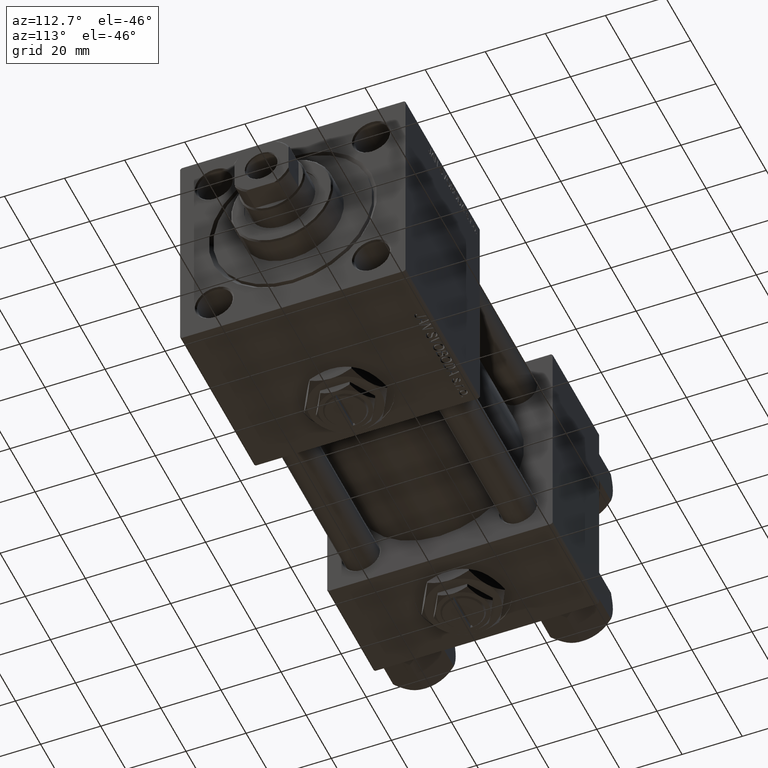
[diagram: clean part render]
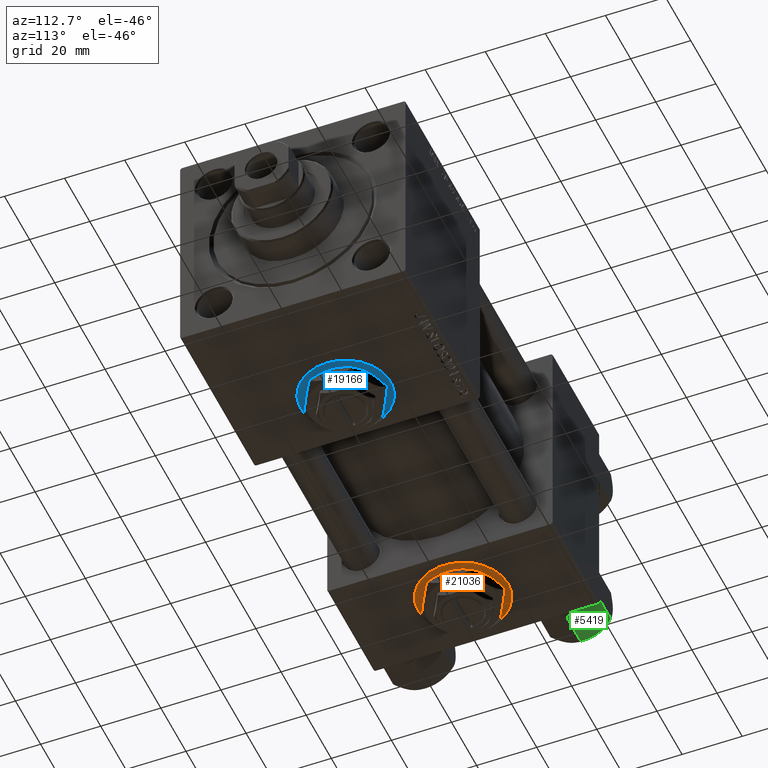
[diagram: same view with three faces highlighted in distinct colors, each labeled with its STEP entity id]
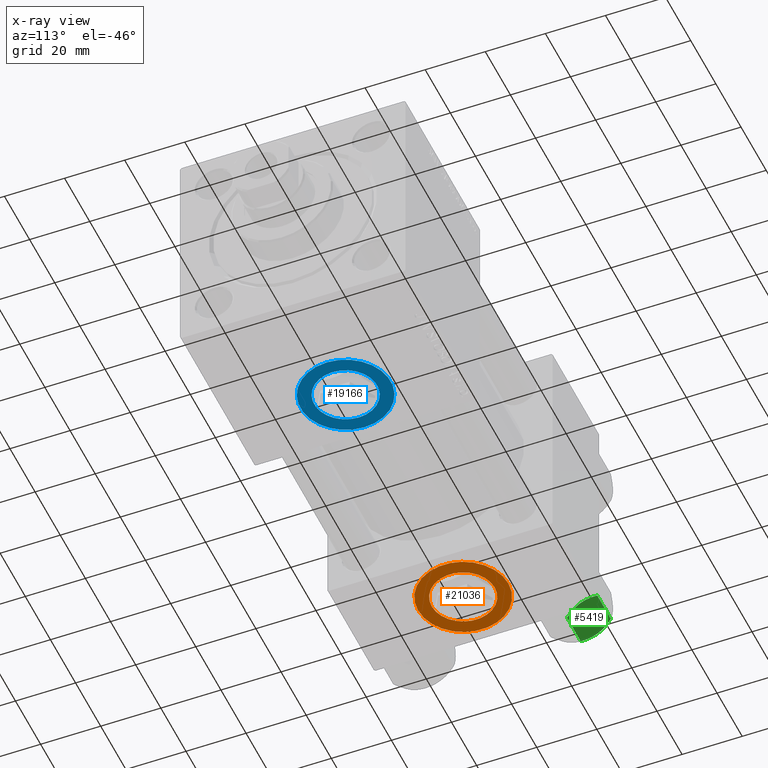
[diagram: x-ray of the same camera — body ghosted, the three highlighted faces saturated]
A machine part, auxiliary view with three faces highlighted in distinct colors.
The next image is the same camera in x-ray (body ghosted, the three faces saturated) — at least one of them is partly hidden behind the body in this view.
Their STEP definitions:

[orange] entity #21036 — the highlighted planar face has unit normal (0, -0, -1).
#77 = EDGE_CURVE ( 'NONE', #47292, #47992, #15383, .T. ) ;
#2764 = AXIS2_PLACEMENT_3D ( 'NONE', #49921, #29557, #38552 ) ;
#3228 = CARTESIAN_POINT ( 'NONE',  ( 18.50000000000001066, -15.00000000000000000, -37.30000000000000426 ) ) ;
#3507 = EDGE_CURVE ( 'NONE', #20771, #42264, #39998, .T. ) ;
#4286 = DIRECTION ( 'NONE',  ( 0.000000000000000000, -1.734723475976806848E-16, -1.000000000000000000 ) ) ;
#6861 = ORIENTED_EDGE ( 'NONE', *, *, #3507, .T. ) ;
#8782 = CARTESIAN_POINT ( 'NONE',  ( 18.50000000000000711, 15.00000000000000000, -37.30000000000000426 ) ) ;
#8945 = DIRECTION ( 'NONE',  ( 0.000000000000000000, -1.734723475976806848E-16, -1.000000000000000000 ) ) ;
#9993 = ORIENTED_EDGE ( 'NONE', *, *, #77, .F. ) ;
#11421 = DIRECTION ( 'NONE',  ( 0.000000000000000000, 1.000000000000000000, 0.000000000000000000 ) ) ;
#12546 = EDGE_LOOP ( 'NONE', ( #27394, #6861 ) ) ;
#13493 = CIRCLE ( 'NONE', #35454, 15.00000000000000000 ) ;
#14756 = EDGE_LOOP ( 'NONE', ( #40326, #9993 ) ) ;
#15383 = CIRCLE ( 'NONE', #27250, 10.48000000000000043 ) ;
#15629 = DIRECTION ( 'NONE',  ( 0.000000000000000000, -1.734723475976806848E-16, -1.000000000000000000 ) ) ;
#19341 = CARTESIAN_POINT ( 'NONE',  ( 18.50000000000000711, 5.649891035195026335E-16, -37.30000000000000426 ) ) ;
#20550 = FACE_OUTER_BOUND ( 'NONE', #12546, .T. ) ;
#20771 = VERTEX_POINT ( 'NONE', #3228 ) ;
#21036 = ADVANCED_FACE ( 'NONE', ( #24528, #20550 ), #48591, .T. ) ;
#21500 = EDGE_CURVE ( 'NONE', #42264, #20771, #13493, .T. ) ;
#24528 = FACE_BOUND ( 'NONE', #14756, .T. ) ;
#25516 = CIRCLE ( 'NONE', #2764, 10.48000000000000043 ) ;
#26149 = AXIS2_PLACEMENT_3D ( 'NONE', #40660, #8945, #48851 ) ;
#27250 = AXIS2_PLACEMENT_3D ( 'NONE', #40478, #4286, #45213 ) ;
#27358 = AXIS2_PLACEMENT_3D ( 'NONE', #19341, #15629, #11421 ) ;
#27394 = ORIENTED_EDGE ( 'NONE', *, *, #21500, .T. ) ;
#29220 = DIRECTION ( 'NONE',  ( 0.000000000000000000, -1.734723475976806848E-16, -1.000000000000000000 ) ) ;
#29557 = DIRECTION ( 'NONE',  ( 0.000000000000000000, -1.734723475976806848E-16, -1.000000000000000000 ) ) ;
#30266 = DIRECTION ( 'NONE',  ( 0.000000000000000000, 1.000000000000000000, 0.000000000000000000 ) ) ;
#32521 = CARTESIAN_POINT ( 'NONE',  ( 18.50000000000000711, 10.48000000000000043, -37.30000000000000426 ) ) ;
#35454 = AXIS2_PLACEMENT_3D ( 'NONE', #41635, #29220, #30266 ) ;
#38552 = DIRECTION ( 'NONE',  ( 0.000000000000000000, 1.000000000000000000, 0.000000000000000000 ) ) ;
#39649 = EDGE_CURVE ( 'NONE', #47992, #47292, #25516, .T. ) ;
#39998 = CIRCLE ( 'NONE', #27358, 15.00000000000000000 ) ;
#40326 = ORIENTED_EDGE ( 'NONE', *, *, #39649, .F. ) ;
#40478 = CARTESIAN_POINT ( 'NONE',  ( 18.50000000000000711, 5.649891035195030279E-16, -37.30000000000000426 ) ) ;
#40660 = CARTESIAN_POINT ( 'NONE',  ( 18.50000000000000711, 5.649891035195026335E-16, -37.30000000000000426 ) ) ;
#41635 = CARTESIAN_POINT ( 'NONE',  ( 18.50000000000000711, 5.649891035195026335E-16, -37.30000000000000426 ) ) ;
#42264 = VERTEX_POINT ( 'NONE', #8782 ) ;
#45213 = DIRECTION ( 'NONE',  ( 0.000000000000000000, 1.000000000000000000, 0.000000000000000000 ) ) ;
#47292 = VERTEX_POINT ( 'NONE', #48781 ) ;
#47992 = VERTEX_POINT ( 'NONE', #32521 ) ;
#48591 = PLANE ( 'NONE',  #26149 ) ;
#48781 = CARTESIAN_POINT ( 'NONE',  ( 18.50000000000000711, -10.48000000000000043, -37.30000000000000426 ) ) ;
#48851 = DIRECTION ( 'NONE',  ( 0.000000000000000000, 1.000000000000000000, -1.734723475976806848E-16 ) ) ;
#49921 = CARTESIAN_POINT ( 'NONE',  ( 18.50000000000000711, 5.649891035195030279E-16, -37.30000000000000426 ) ) ;

[blue] entity #19166 — the highlighted planar face has unit normal (0, 0, -1).
#1491 = CARTESIAN_POINT ( 'NONE',  ( 112.0000000000000000, 0.000000000000000000, -37.29999999999999716 ) ) ;
#1542 = EDGE_CURVE ( 'NONE', #3871, #19221, #9568, .T. ) ;
#2058 = CIRCLE ( 'NONE', #37437, 15.00000000000000000 ) ;
#3871 = VERTEX_POINT ( 'NONE', #6043 ) ;
#5854 = CARTESIAN_POINT ( 'NONE',  ( 112.0000000000000000, 0.000000000000000000, -37.29999999999999716 ) ) ;
#6043 = CARTESIAN_POINT ( 'NONE',  ( 127.0000000000000000, 1.836970198721029589E-15, -37.29999999999999716 ) ) ;
#6410 = CIRCLE ( 'NONE', #35915, 10.48000000000000398 ) ;
#7781 = EDGE_CURVE ( 'NONE', #48872, #16114, #6410, .T. ) ;
#8595 = DIRECTION ( 'NONE',  ( -1.000000000000000000, 0.000000000000000000, 0.000000000000000000 ) ) ;
#9185 = DIRECTION ( 'NONE',  ( -1.000000000000000000, 0.000000000000000000, 0.000000000000000000 ) ) ;
#9529 = DIRECTION ( 'NONE',  ( -1.000000000000000000, 0.000000000000000000, 0.000000000000000000 ) ) ;
#9568 = CIRCLE ( 'NONE', #36563, 15.00000000000000000 ) ;
#12605 = CARTESIAN_POINT ( 'NONE',  ( 112.0000000000000000, 0.000000000000000000, -37.29999999999999716 ) ) ;
#13471 = CARTESIAN_POINT ( 'NONE',  ( 112.0000000000000000, 0.000000000000000000, -37.29999999999999716 ) ) ;
#14011 = DIRECTION ( 'NONE',  ( 0.000000000000000000, 0.000000000000000000, -1.000000000000000000 ) ) ;
#16114 = VERTEX_POINT ( 'NONE', #49930 ) ;
#17443 = DIRECTION ( 'NONE',  ( -1.000000000000000000, 0.000000000000000000, -0.000000000000000000 ) ) ;
#17558 = ORIENTED_EDGE ( 'NONE', *, *, #37159, .F. ) ;
#19166 = ADVANCED_FACE ( 'NONE', ( #24865, #34104 ), #40999, .T. ) ;
#19221 = VERTEX_POINT ( 'NONE', #49186 ) ;
#23530 = AXIS2_PLACEMENT_3D ( 'NONE', #5854, #14011, #17443 ) ;
#23946 = ORIENTED_EDGE ( 'NONE', *, *, #7781, .F. ) ;
#24438 = DIRECTION ( 'NONE',  ( 0.000000000000000000, 0.000000000000000000, -1.000000000000000000 ) ) ;
#24865 = FACE_BOUND ( 'NONE', #44284, .T. ) ;
#25638 = ORIENTED_EDGE ( 'NONE', *, *, #1542, .T. ) ;
#28514 = EDGE_LOOP ( 'NONE', ( #47483, #25638 ) ) ;
#28741 = DIRECTION ( 'NONE',  ( 0.000000000000000000, 0.000000000000000000, -1.000000000000000000 ) ) ;
#32363 = CARTESIAN_POINT ( 'NONE',  ( 112.0000000000000000, 0.000000000000000000, -37.29999999999999716 ) ) ;
#34104 = FACE_OUTER_BOUND ( 'NONE', #28514, .T. ) ;
#35192 = DIRECTION ( 'NONE',  ( 0.000000000000000000, 0.000000000000000000, -1.000000000000000000 ) ) ;
#35915 = AXIS2_PLACEMENT_3D ( 'NONE', #13471, #45729, #9529 ) ;
#36563 = AXIS2_PLACEMENT_3D ( 'NONE', #1491, #35192, #51327 ) ;
#37159 = EDGE_CURVE ( 'NONE', #16114, #48872, #38135, .T. ) ;
#37437 = AXIS2_PLACEMENT_3D ( 'NONE', #32363, #24438, #8595 ) ;
#38135 = CIRCLE ( 'NONE', #40658, 10.48000000000000398 ) ;
#40658 = AXIS2_PLACEMENT_3D ( 'NONE', #12605, #28741, #9185 ) ;
#40999 = PLANE ( 'NONE',  #23530 ) ;
#42757 = EDGE_CURVE ( 'NONE', #19221, #3871, #2058, .T. ) ;
#44284 = EDGE_LOOP ( 'NONE', ( #17558, #23946 ) ) ;
#45729 = DIRECTION ( 'NONE',  ( 0.000000000000000000, 0.000000000000000000, -1.000000000000000000 ) ) ;
#47483 = ORIENTED_EDGE ( 'NONE', *, *, #42757, .T. ) ;
#48086 = CARTESIAN_POINT ( 'NONE',  ( 122.4800000000000040, 1.283429845506425883E-15, -37.29999999999999716 ) ) ;
#48872 = VERTEX_POINT ( 'NONE', #48086 ) ;
#49186 = CARTESIAN_POINT ( 'NONE',  ( 97.00000000000000000, 0.000000000000000000, -37.29999999999999716 ) ) ;
#49930 = CARTESIAN_POINT ( 'NONE',  ( 101.5199999999999960, 0.000000000000000000, -37.29999999999999716 ) ) ;
#51327 = DIRECTION ( 'NONE',  ( -1.000000000000000000, 0.000000000000000000, 0.000000000000000000 ) ) ;

[green] entity #5419 — the highlighted planar face has unit normal (0, -0.5, 0.866).
#473 = CARTESIAN_POINT ( 'NONE',  ( -11.61999999999999922, 6.270720075510426383E-15, -12.44321519197518811 ) ) ;
#1996 = EDGE_CURVE ( 'NONE', #14560, #14546, #25594, .T. ) ;
#2921 = EDGE_CURVE ( 'NONE', #12152, #24991, #48257, .T. ) ;
#3706 = CARTESIAN_POINT ( 'NONE',  ( -11.61999999999999922, 6.270720075409452187E-15, -1.556784808024810562 ) ) ;
#5419 = ADVANCED_FACE ( 'NONE', ( #27434 ), #51749, .F. ) ;
#6000 = CARTESIAN_POINT ( 'NONE',  ( -9.220295946303428636, 4.156409344131455796, 3.796401669593772542E-15 ) ) ;
#9951 = CARTESIAN_POINT ( 'NONE',  ( -11.16498164529022219, 0.7881149087337359083, -1.101766453314949379 ) ) ;
#10001 = CARTESIAN_POINT ( 'NONE',  ( -8.202333004087897450, 5.919572880271055659, -0.03994118060690620559 ) ) ;
#10416 = CARTESIAN_POINT ( 'NONE',  ( -5.809999999999997833, 10.06321519197518022, -12.44321519197518455 ) ) ;
#10516 = CARTESIAN_POINT ( 'NONE',  ( -6.731401448974986934, 8.467301068182916168, -0.7141438259524646170 ) ) ;
#10770 = CARTESIAN_POINT ( 'NONE',  ( -5.809999999999997833, 10.06321519197518022, -1.556784808024814115 ) ) ;
#10801 = DIRECTION ( 'NONE',  ( 0.8660254037844385966, -0.5000000000000002220, 0.000000000000000000 ) ) ;
#11554 = CARTESIAN_POINT ( 'NONE',  ( -9.227666995912096937, 4.143642311704127223, -13.96005881939308857 ) ) ;
#12006 = VERTEX_POINT ( 'NONE', #3706 ) ;
#12152 = VERTEX_POINT ( 'NONE', #17125 ) ;
#13891 = CARTESIAN_POINT ( 'NONE',  ( -10.69662495661650148, 1.599332489581337668, -0.7114554706434472742 ) ) ;
#14354 = CARTESIAN_POINT ( 'NONE',  ( -7.713000053756302599, 6.767122412062954062, -13.84547602999601601 ) ) ;
#14402 = ORIENTED_EDGE ( 'NONE', *, *, #31536, .F. ) ;
#14546 = VERTEX_POINT ( 'NONE', #29983 ) ;
#14560 = VERTEX_POINT ( 'NONE', #17016 ) ;
#14716 = CARTESIAN_POINT ( 'NONE',  ( -8.460569896449618099, 5.472293462311865753, 3.939644352451667145E-15 ) ) ;
#15012 = CARTESIAN_POINT ( 'NONE',  ( -5.809999999999997833, 10.06321519197518022, -14.00000000000000000 ) ) ;
#15501 = CARTESIAN_POINT ( 'NONE',  ( -9.974696630283190757, 2.849749030213795109, -13.69973261901325934 ) ) ;
#15520 = CARTESIAN_POINT ( 'NONE',  ( -11.61999999999999922, 6.288644352490894150E-15, -14.00000000000000000 ) ) ;
#15717 = CARTESIAN_POINT ( 'NONE',  ( -11.61999999999999922, 6.288644352490894150E-15, -14.00000000000000000 ) ) ;
#16498 = LINE ( 'NONE', #15717, #24517 ) ;
#17016 = CARTESIAN_POINT ( 'NONE',  ( -5.809999999999997833, 10.06321519197518022, -1.556784808024814115 ) ) ;
#17125 = CARTESIAN_POINT ( 'NONE',  ( -11.61999999999999922, 6.270720075510426383E-15, -12.44321519197518811 ) ) ;
#17328 = CARTESIAN_POINT ( 'NONE',  ( -8.715000000000003411, 5.031607595987592774, 0.000000000000000000 ) ) ;
#18683 = CARTESIAN_POINT ( 'NONE',  ( -6.265545725125282850, 9.274186850887385702, -1.101239082899533539 ) ) ;
#19243 = DIRECTION ( 'NONE',  ( -0.000000000000000000, -0.000000000000000000, 1.000000000000000000 ) ) ;
#19735 = CARTESIAN_POINT ( 'NONE',  ( -9.729165168613649328, 3.275021996682086822, -13.80960203119265906 ) ) ;
#20102 = B_SPLINE_CURVE_WITH_KNOTS ( 'NONE', 3,
 ( #50592, #34194, #14354, #31013, #30498, #10416 ),
 .UNSPECIFIED., .F., .F.,
 ( 4, 2, 4 ),
 ( 0.006022845781655582903, 0.009013049135303629819, 0.01200325248895167847 ),
 .UNSPECIFIED. ) ;
#22097 = CARTESIAN_POINT ( 'NONE',  ( -9.716999946243694453, 3.296092779912229265, -0.1545239700039824915 ) ) ;
#24517 = VECTOR ( 'NONE', #41093, 1000.000000000000000 ) ;
#24991 = VERTEX_POINT ( 'NONE', #46589 ) ;
#25528 = CARTESIAN_POINT ( 'NONE',  ( -11.61999999999999922, 6.270720075409452187E-15, -1.556784808024810562 ) ) ;
#25594 = B_SPLINE_CURVE_WITH_KNOTS ( 'NONE', 3,
 ( #10770, #18683, #10516, #34561, #27151, #10001, #14716, #43013 ),
 .UNSPECIFIED., .F., .F.,
 ( 4, 2, 2, 4 ),
 ( 2.544312114902182352E-07, 0.003011550106433540791, 0.004517197944044565316, 0.006022845781655589842 ),
 .UNSPECIFIED. ) ;
#26771 = EDGE_CURVE ( 'NONE', #12152, #12006, #16498, .T. ) ;
#27151 = CARTESIAN_POINT ( 'NONE',  ( -7.700834831386344170, 6.788193195293096949, -0.1903979688073401122 ) ) ;
#27434 = FACE_OUTER_BOUND ( 'NONE', #29638, .T. ) ;
#27963 = DIRECTION ( 'NONE',  ( 0.5000000000000001110, 0.8660254037844384856, 0.000000000000000000 ) ) ;
#29096 = AXIS2_PLACEMENT_3D ( 'NONE', #15520, #10801, #27963 ) ;
#29638 = EDGE_LOOP ( 'NONE', ( #36312, #35308, #31933, #34278, #14402, #37773 ) ) ;
#29983 = CARTESIAN_POINT ( 'NONE',  ( -8.715000000000003411, 5.031607595987592774, 0.000000000000000000 ) ) ;
#30498 = CARTESIAN_POINT ( 'NONE',  ( -6.265018354709776638, 9.275100283241455301, -12.89823354668505218 ) ) ;
#31013 = CARTESIAN_POINT ( 'NONE',  ( -6.733375043383492020, 8.463882702393842550, -13.28854452935654962 ) ) ;
#31045 = VERTEX_POINT ( 'NONE', #47732 ) ;
#31536 = EDGE_CURVE ( 'NONE', #31045, #14560, #35630, .T. ) ;
#31933 = ORIENTED_EDGE ( 'NONE', *, *, #34872, .F. ) ;
#34194 = CARTESIAN_POINT ( 'NONE',  ( -8.209704053696567527, 5.906805847843725310, -14.00000000000000533 ) ) ;
#34278 = ORIENTED_EDGE ( 'NONE', *, *, #1996, .F. ) ;
#34396 = B_SPLINE_CURVE_WITH_KNOTS ( 'NONE', 3,
 ( #17328, #6000, #22097, #13891, #9951, #25528 ),
 .UNSPECIFIED., .F., .F.,
 ( 4, 2, 4 ),
 ( 0.006022845781655589842, 0.009013049135303633289, 0.01200325248895167674 ),
 .UNSPECIFIED. ) ;
#34561 = CARTESIAN_POINT ( 'NONE',  ( -7.455303369716805406, 7.213466161761384221, -0.3002673809867362764 ) ) ;
#34872 = EDGE_CURVE ( 'NONE', #14546, #12006, #34396, .T. ) ;
#35308 = ORIENTED_EDGE ( 'NONE', *, *, #26771, .T. ) ;
#35630 = LINE ( 'NONE', #15012, #38891 ) ;
#36312 = ORIENTED_EDGE ( 'NONE', *, *, #2921, .F. ) ;
#37773 = ORIENTED_EDGE ( 'NONE', *, *, #50287, .F. ) ;
#38891 = VECTOR ( 'NONE', #19243, 1000.000000000000000 ) ;
#40366 = CARTESIAN_POINT ( 'NONE',  ( -11.16445427487471598, 0.7890283410878030645, -12.89876091710047312 ) ) ;
#41093 = DIRECTION ( 'NONE',  ( -0.000000000000000000, -0.000000000000000000, 1.000000000000000000 ) ) ;
#43013 = CARTESIAN_POINT ( 'NONE',  ( -8.715000000000003411, 5.031607595987592774, 0.000000000000000000 ) ) ;
#43538 = CARTESIAN_POINT ( 'NONE',  ( -8.715000000000001634, 5.031607595987591885, -14.00000000000000000 ) ) ;
#46589 = CARTESIAN_POINT ( 'NONE',  ( -8.715000000000001634, 5.031607595987591885, -14.00000000000000000 ) ) ;
#47509 = CARTESIAN_POINT ( 'NONE',  ( -8.969430103550378064, 4.590921729663314466, -14.00000000000000178 ) ) ;
#47732 = CARTESIAN_POINT ( 'NONE',  ( -5.809999999999997833, 10.06321519197518022, -12.44321519197518455 ) ) ;
#48257 = B_SPLINE_CURVE_WITH_KNOTS ( 'NONE', 3,
 ( #473, #40366, #48558, #15501, #19735, #11554, #47509, #43538 ),
 .UNSPECIFIED., .F., .F.,
 ( 4, 2, 2, 4 ),
 ( 2.544312114905218436E-07, 0.003011550106433537755, 0.004517197944044560980, 0.006022845781655582903 ),
 .UNSPECIFIED. ) ;
#48558 = CARTESIAN_POINT ( 'NONE',  ( -10.69859855102501101, 1.595914123792268491, -13.28585617404753627 ) ) ;
#50287 = EDGE_CURVE ( 'NONE', #24991, #31045, #20102, .T. ) ;
#50592 = CARTESIAN_POINT ( 'NONE',  ( -8.715000000000001634, 5.031607595987591885, -14.00000000000000000 ) ) ;
#51749 = PLANE ( 'NONE',  #29096 ) ;